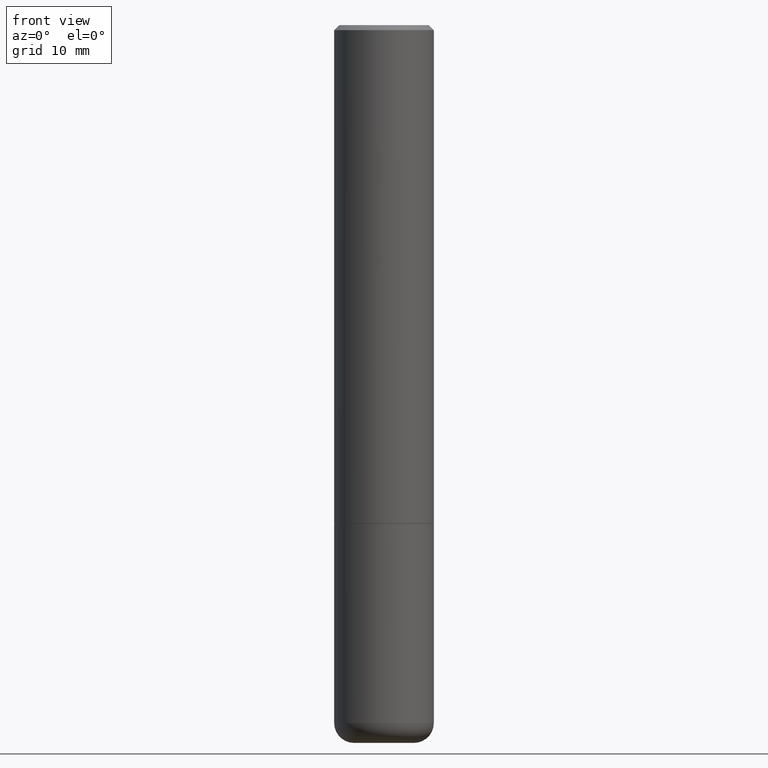
[diagram: clean part render]
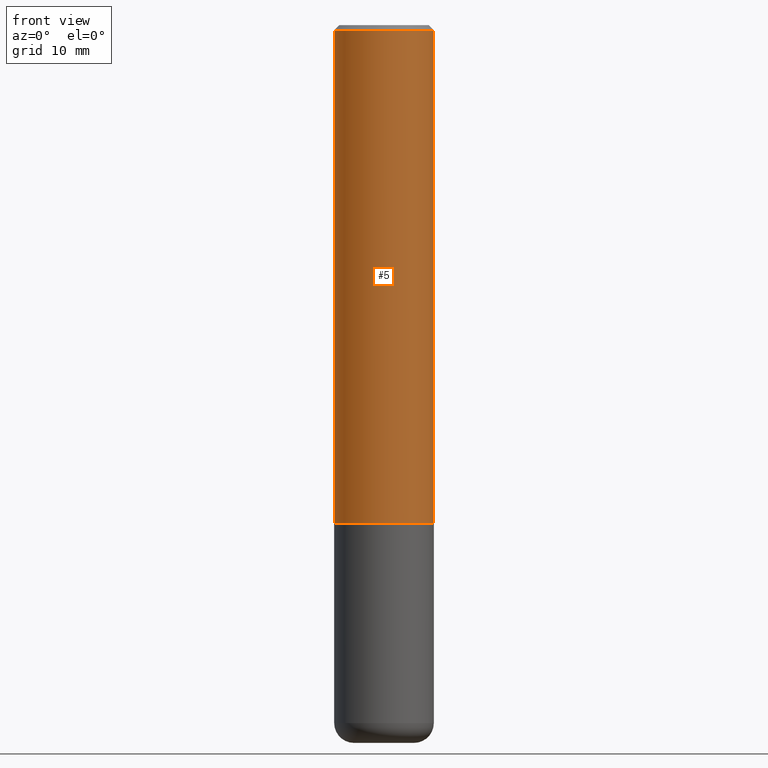
[diagram: same view with one face highlighted and labeled with its STEP entity id]
A machine part, front view. The second image highlights one B-rep face of the part: STEP entity #5.
In plain terms, the highlighted cylindrical surface (partial cylindrical patch) has radius 5 mm, axis along (-0, 0, 1).
Its self-contained STEP definition (entity closure, byte-faithful):
#4 = DIRECTION ( 'NONE',  ( -2.445468806185136597E-29, 3.491481338843145583E-15, 1.000000000000000000 ) ) ;
#5 = ADVANCED_FACE ( 'NONE', ( #127 ), #247, .T. ) ;
#7 = CARTESIAN_POINT ( 'NONE',  ( -0.1968500000000002192, -2.070956205131615845E-15, -1.967500000000000027 ) ) ;
#14 = DIRECTION ( 'NONE',  ( -2.445468806185136877E-29, 3.491481338843145188E-15, 1.000000000000000000 ) ) ;
#23 = ORIENTED_EDGE ( 'NONE', *, *, #353, .T. ) ;
#25 = DIRECTION ( 'NONE',  ( 1.000000000000000000, -6.982962677686266711E-15, 4.876176775795935793E-29 ) ) ;
#34 = CARTESIAN_POINT ( 'NONE',  ( -0.1968500000000000250, 1.304766576325678705E-15, -0.02000000000000004205 ) ) ;
#48 = VECTOR ( 'NONE', #225, 39.37007874015748143 ) ;
#51 = EDGE_CURVE ( 'NONE', #158, #60, #111, .T. ) ;
#60 = VERTEX_POINT ( 'NONE', #163 ) ;
#62 = CIRCLE ( 'NONE', #416, 0.1968500000000002192 ) ;
#73 = CARTESIAN_POINT ( 'NONE',  ( 0.1968500000000001082, -1.374596203102542397E-15, 9.598753983154305062E-30 ) ) ;
#97 = EDGE_CURVE ( 'NONE', #373, #60, #102, .T. ) ;
#98 = ORIENTED_EDGE ( 'NONE', *, *, #97, .T. ) ;
#102 = LINE ( 'NONE', #73, #48 ) ;
#111 = CIRCLE ( 'NONE', #177, 0.1968500000000000250 ) ;
#125 = DIRECTION ( 'NONE',  ( -2.445468806185136597E-29, 3.491481338843145583E-15, 1.000000000000000000 ) ) ;
#127 = FACE_OUTER_BOUND ( 'NONE', #147, .T. ) ;
#147 = EDGE_LOOP ( 'NONE', ( #415, #23, #98, #211 ) ) ;
#158 = VERTEX_POINT ( 'NONE', #34 ) ;
#162 = CARTESIAN_POINT ( 'NONE',  ( 4.890937612370283668E-31, -6.982962677686305168E-17, -0.02000000000000004205 ) ) ;
#163 = CARTESIAN_POINT ( 'NONE',  ( 0.1968500000000000250, -1.420318657638189122E-15, -0.02000000000000004205 ) ) ;
#173 = CARTESIAN_POINT ( 'NONE',  ( -0.1968500000000001082, 1.398703375343757985E-15, -9.682923725166787881E-30 ) ) ;
#177 = AXIS2_PLACEMENT_3D ( 'NONE', #162, #4, #418 ) ;
#178 = VECTOR ( 'NONE', #14, 39.37007874015748143 ) ;
#187 = CARTESIAN_POINT ( 'NONE',  ( 0.1968500000000002192, -8.244085737276431886E-15, -1.967500000000000027 ) ) ;
#211 = ORIENTED_EDGE ( 'NONE', *, *, #51, .F. ) ;
#225 = DIRECTION ( 'NONE',  ( -2.445468806185136877E-29, 3.491481338843145188E-15, 1.000000000000000000 ) ) ;
#241 = LINE ( 'NONE', #173, #178 ) ;
#247 = CYLINDRICAL_SURFACE ( 'NONE', #267, 0.1968500000000001082 ) ;
#255 = VERTEX_POINT ( 'NONE', #7 ) ;
#267 = AXIS2_PLACEMENT_3D ( 'NONE', #406, #125, #25 ) ;
#280 = EDGE_CURVE ( 'NONE', #255, #158, #241, .T. ) ;
#305 = CARTESIAN_POINT ( 'NONE',  ( 4.811459876169256232E-29, -6.869489534173888700E-15, -1.967500000000000027 ) ) ;
#353 = EDGE_CURVE ( 'NONE', #255, #373, #62, .T. ) ;
#369 = DIRECTION ( 'NONE',  ( -2.445468806185136597E-29, 3.491481338843145583E-15, 1.000000000000000000 ) ) ;
#373 = VERTEX_POINT ( 'NONE', #187 ) ;
#396 = DIRECTION ( 'NONE',  ( 1.000000000000000000, -6.982962677686265922E-15, 0.000000000000000000 ) ) ;
#406 = CARTESIAN_POINT ( 'NONE',  ( 0.000000000000000000, 0.000000000000000000, 0.000000000000000000 ) ) ;
#415 = ORIENTED_EDGE ( 'NONE', *, *, #280, .F. ) ;
#416 = AXIS2_PLACEMENT_3D ( 'NONE', #305, #369, #396 ) ;
#418 = DIRECTION ( 'NONE',  ( 1.000000000000000000, -6.982962677686265922E-15, 0.000000000000000000 ) ) ;